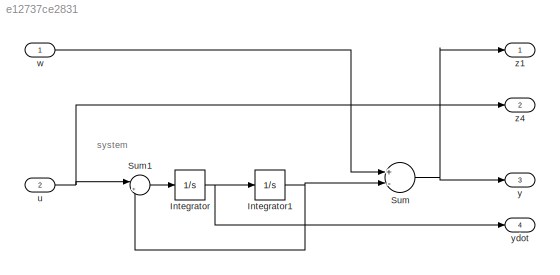
MODEL slx_e12737ce2831
KIND model
CONFIG AbsTol = auto
CONFIG EnableMultiTasking = on
CONFIG FixedStep = auto
CONFIG MaxStep = auto
CONFIG MinStep = auto
CONFIG RelTol = 1e-3
CONFIG SampleTimeConstraint = Unconstrained
CONFIG Solver = ode45
CONFIG SolverName = ode45
CONFIG StartTime = 0.0
CONFIG StopTime = 10.0
BLOCK [Integrator] Integrator
  Ports = [1, 1]
BLOCK [Integrator] Integrator1
  Ports = [1, 1]
BLOCK [Sum] Sum
  Inputs = +-
  Ports = [2, 1]
BLOCK [Sum] Sum1
  IconShape = round
  InputSameDT = off
  Inputs = |++
  OutDataTypeStr = Inherit: Inherit via internal rule
  Ports = [2, 1]
  SaturateOnIntegerOverflow = off
BLOCK [Inport] u
  IconDisplay = Port number
  Port = 2
BLOCK [Inport] w
  IconDisplay = Port number
BLOCK [Outport] y
  IconDisplay = Port number
  Port = 3
BLOCK [Outport] ydot
  IconDisplay = Port number
  Port = 4
BLOCK [Outport] z1
  IconDisplay = Port number
BLOCK [Outport] z4
  IconDisplay = Port number
  Port = 2
ANNOTATION (root): system
NET Integrator1:1 -> Sum1:2, Sum:2
NET Integrator:1 -> Integrator1:1, ydot:1
LINE Sum1:1 -> Integrator:1
NET Sum:1 -> y:1, z1:1
NET u:1 -> Sum1:1, z4:1
LINE w:1 -> Sum:1
note: NET lines group one-source signal fan-out (src -> all destinations, sorted); 1:1 wires keep LINE
